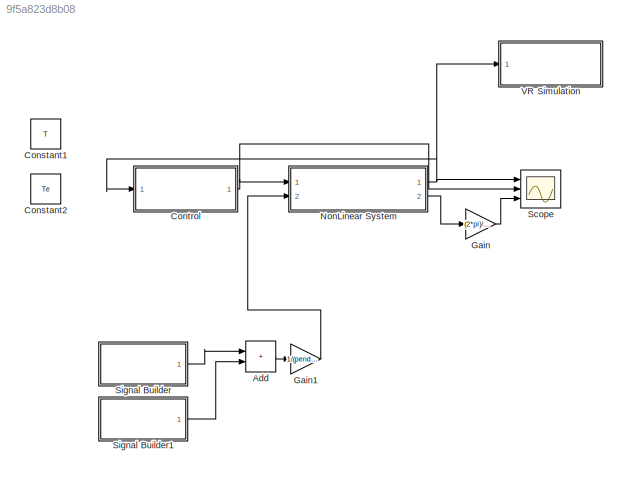
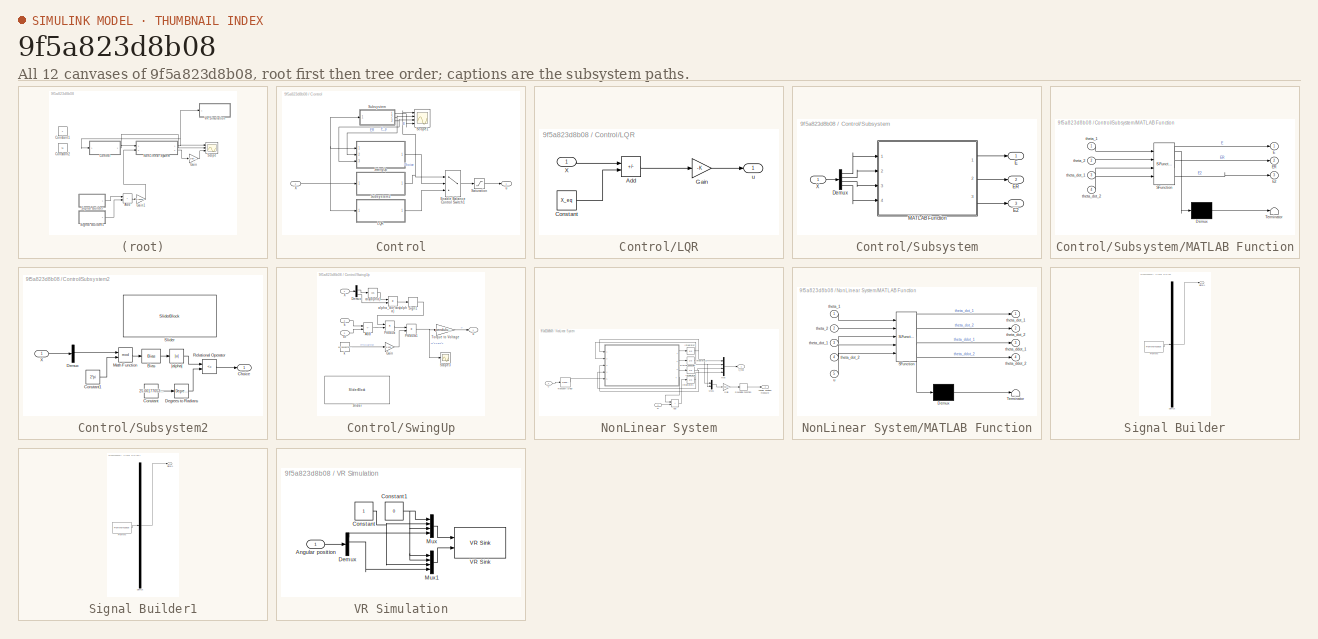
[diagram: thumbnail index - all 12 canvases of the model, root first then tree order]
MODEL slx_9f5a823d8b08
KIND model
CONFIG AbsTol = auto
CONFIG EnableMultiTasking = off
CONFIG FixedStep = auto
CONFIG MaxStep = auto
CONFIG MinStep = auto
CONFIG RelTol = 1e-3
CONFIG SampleTimeConstraint = Unconstrained
CONFIG SolverName = VariableStepAuto
CONFIG StartTime = 0.0
CONFIG StopTime = T
BLOCK [Sum] Add
  IconShape = rectangular
  Ports = [2, 1]
BLOCK [Constant] Constant1
  Value = T
BLOCK [Constant] Constant2
  Value = Te
BLOCK [SubSystem] Control
  Ports = [1, 1]
  RequestExecContextInheritance = off
BLOCK [MultiPortSwitch] Control/Enable Balance Control Switch1
  DataPortOrder = Zero-based contiguous
  InputSameDT = off
  Inputs = 2
  Ports = [3, 1]
  SaturateOnIntegerOverflow = off
  zeroidx = on
BLOCK [SubSystem] Control/LQR
  Ports = [1, 1]
  RequestExecContextInheritance = off
BLOCK [Sum] Control/LQR/Add
  IconShape = rectangular
  Inputs = +-
  Ports = [2, 1]
BLOCK [Constant] Control/LQR/Constant
  Value = X_eq
BLOCK [Gain] Control/LQR/Gain
  Gain = -K
  Multiplication = Matrix(K*u)
BLOCK [Inport] Control/LQR/X
BLOCK [Outport] Control/LQR/u
BLOCK [Saturate] Control/Saturation
  LowerLimit = -10
  UpperLimit = 10
BLOCK [Scope] Control/Scope1
  Floating = off
  NumInputPorts = 4
  Ports = [4]
  ScopeSpecificationString = Simulink.scopes.TimeScopeBlockCfg('CurrentConfiguration', extmgr.ConfigurationSet(extmgr.Configuration('Core','General UI',true,'FigureColor',[1 1 1]),extmgr.Configuration('Core','Source UI',true),extmgr.Configuration('Sources','WiredSimulink',true,'DataLoggingVariableName','ScopeData2','SampleTime','Te'),extmgr.Configuration('Visuals','Time Domain',true,'SerializedDisplays',{struct('MinYLimReal',...<+2478ch>
BLOCK [SubSystem] Control/Subsystem
  Ports = [1, 3]
  RequestExecContextInheritance = off
BLOCK [Demux] Control/Subsystem/Demux
  Ports = [1, 4]
BLOCK [Outport] Control/Subsystem/E
BLOCK [Outport] Control/Subsystem/E2
  Port = 3
BLOCK [Outport] Control/Subsystem/ER
  Port = 2
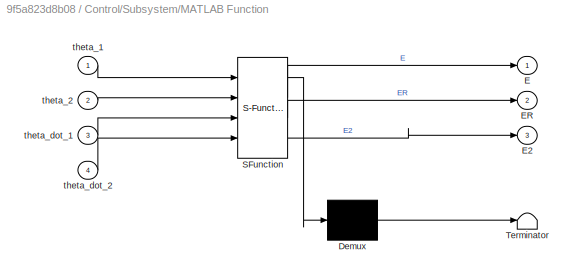
BLOCK [SubSystem] Control/Subsystem/MATLAB Function
  ErrorFcn = Stateflow.Translate.translate
  PermitHierarchicalResolution = ExplicitOnly
  Ports = [4, 3]
  RequestExecContextInheritance = off
  SFBlockType = MATLAB Function
  TreatAsAtomicUnit = on
BLOCK [Demux] Control/Subsystem/MATLAB Function/ Demux 
  Outputs = 1
  Ports = [1, 1]
BLOCK [S-Function] Control/Subsystem/MATLAB Function/ SFunction 
  EnableBusSupport = on
  FunctionName = sf_sfun
  PortCounts = [4 4]
  Ports = [4, 4]
  SFcnIsStateOwnerBlock = off
  SFunctionDeploymentMode = off
  Tag = Stateflow S-Function 1
BLOCK [Terminator] Control/Subsystem/MATLAB Function/ Terminator 
BLOCK [Outport] Control/Subsystem/MATLAB Function/E
BLOCK [Outport] Control/Subsystem/MATLAB Function/E2
  Port = 3
BLOCK [Outport] Control/Subsystem/MATLAB Function/ER
  Port = 2
BLOCK [Inport] Control/Subsystem/MATLAB Function/theta_1
BLOCK [Inport] Control/Subsystem/MATLAB Function/theta_2
  Port = 2
BLOCK [Inport] Control/Subsystem/MATLAB Function/theta_dot_1
  Port = 3
BLOCK [Inport] Control/Subsystem/MATLAB Function/theta_dot_2
  Port = 4
BLOCK [Inport] Control/Subsystem/X
BLOCK [SubSystem] Control/Subsystem2
  Ports = [1, 1]
  RequestExecContextInheritance = off
BLOCK [Bias] Control/Subsystem2/Bias
  Bias = -pi
  SaturateOnIntegerOverflow = off
BLOCK [Outport] Control/Subsystem2/Choice
BLOCK [Constant] Control/Subsystem2/Constant
  Value = 25.00177053824363
BLOCK [Constant] Control/Subsystem2/Constant1
  Value = 2*pi
BLOCK [Reference] Control/Subsystem2/Degrees to Radians  REF=simulink_extras/Transformations/Degrees to
Radians
  Ports = [1, 1]
  SourceBlock = simulink_extras/Transformations/Degrees to\nRadians
  SourceProductBaseCode = SL
  SourceType = DegreesToRadians
BLOCK [Demux] Control/Subsystem2/Demux
  Ports = [1, 4]
BLOCK [Math] Control/Subsystem2/Math Function
  Operator = mod
  Ports = [2, 1]
  SignedPower = on
BLOCK [RelationalOperator] Control/Subsystem2/Relational Operator
  InputSameDT = off
  Operator = <=
  OutDataTypeStr = boolean
  Ports = [2, 1]
  RndMeth = Simplest
BLOCK [SliderBlock] Control/Subsystem2/Slider
  ScaleMax = 180
BLOCK [Inport] Control/Subsystem2/X
BLOCK [Abs] Control/Subsystem2/|alpha|
  SaturateOnIntegerOverflow = off
BLOCK [SubSystem] Control/SwingUp
  Ports = [3, 1]
  RequestExecContextInheritance = off
BLOCK [Sum] Control/SwingUp/Add
  IconShape = rectangular
  Inputs = +-
  Ports = [2, 1]
BLOCK [Demux] Control/SwingUp/Demux
  Ports = [1, 4]
BLOCK [Inport] Control/SwingUp/E
  Port = 3
BLOCK [Inport] Control/SwingUp/Er
  Port = 2
BLOCK [Gain] Control/SwingUp/Gain
  Gain = 1/100
BLOCK [Product] Control/SwingUp/Product
  Ports = [2, 1]
BLOCK [Product] Control/SwingUp/Product1
  Ports = [2, 1]
BLOCK [Scope] Control/SwingUp/Scope3
  Floating = off
  NumInputPorts = 1
  Ports = [1]
  ScopeSpecificationString = Simulink.scopes.TimeScopeBlockCfg('CurrentConfiguration', extmgr.ConfigurationSet(extmgr.Configuration('Core','General UI',true),extmgr.Configuration('Core','Source UI',true),extmgr.Configuration('Sources','WiredSimulink',true,'DataLoggingVariableName','ScopeData1','SampleTime','0.01'),extmgr.Configuration('Visuals','Time Domain',true,'SerializedDisplays',{struct('MinYLimReal','-0.01983','MaxYLimR...<+1461ch>
BLOCK [Signum] Control/SwingUp/Sign1
  ZeroCross = off
BLOCK [SliderBlock] Control/SwingUp/Slider
BLOCK [Gain] Control/SwingUp/Torque to Voltage
  Gain = pendulumParameter.Rm/pendulumParameter.kt
BLOCK [Inport] Control/SwingUp/X
BLOCK [Product] Control/SwingUp/alpha_dot*cos(alpha)
  Ports = [2, 1]
  RndMeth = Zero
BLOCK [Trigonometry] Control/SwingUp/cos(alpha)
  Operator = cos
  Ports = [1, 1]
BLOCK [Constant] Control/SwingUp/k
  Value = 84.99195278969958
BLOCK [Outport] Control/SwingUp/u
  VectorParamsAs1DForOutWhenUnconnected = off
BLOCK [Inport] Control/X
BLOCK [Outport] Control/u
BLOCK [Gain] Gain
  Gain = (2*pi)/2048
BLOCK [Gain] Gain1
  Gain = 1/(pendulumParameter.M2*pendulumParameter.L2)
BLOCK [SubSystem] NonLinear System
  Ports = [2, 2]
  RequestExecContextInheritance = off
BLOCK [Sum] NonLinear System/Add
  IconShape = rectangular
  Ports = [2, 1]
BLOCK [Outport] NonLinear System/Angular position measure
  Port = 2
BLOCK [Gain] NonLinear System/Gain
  Gain = 2048/(2*pi)
BLOCK [Integrator] NonLinear System/Integrator
  Ports = [1, 1]
BLOCK [Integrator] NonLinear System/Integrator1
  Ports = [1, 1]
BLOCK [Integrator] NonLinear System/Integrator2
  InitialCondition = 0.1
  Ports = [1, 1]
BLOCK [Integrator] NonLinear System/Integrator3
  Ports = [1, 1]
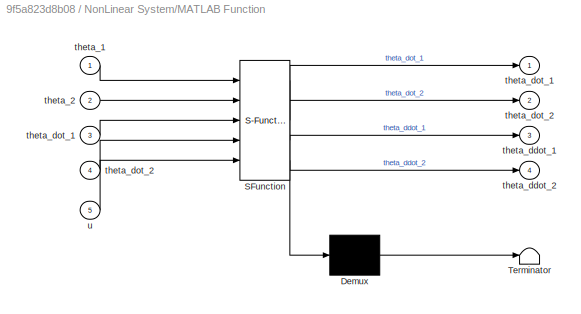
BLOCK [SubSystem] NonLinear System/MATLAB Function
  ErrorFcn = Stateflow.Translate.translate
  PermitHierarchicalResolution = ExplicitOnly
  Ports = [5, 4]
  RequestExecContextInheritance = off
  SFBlockType = MATLAB Function
  TreatAsAtomicUnit = on
BLOCK [Demux] NonLinear System/MATLAB Function/ Demux 
  Outputs = 1
  Ports = [1, 1]
BLOCK [S-Function] NonLinear System/MATLAB Function/ SFunction 
  EnableBusSupport = on
  FunctionName = sf_sfun
  PortCounts = [5 5]
  Ports = [5, 5]
  SFcnIsStateOwnerBlock = off
  SFunctionDeploymentMode = off
  Tag = Stateflow S-Function 3
BLOCK [Terminator] NonLinear System/MATLAB Function/ Terminator 
BLOCK [Inport] NonLinear System/MATLAB Function/theta_1
BLOCK [Inport] NonLinear System/MATLAB Function/theta_2
  Port = 2
BLOCK [Outport] NonLinear System/MATLAB Function/theta_ddot_1
  Port = 3
BLOCK [Outport] NonLinear System/MATLAB Function/theta_ddot_2
  Port = 4
BLOCK [Outport] NonLinear System/MATLAB Function/theta_dot_1
BLOCK [Inport] NonLinear System/MATLAB Function/theta_dot_1 
  Port = 3
BLOCK [Outport] NonLinear System/MATLAB Function/theta_dot_2
  Port = 2
BLOCK [Inport] NonLinear System/MATLAB Function/theta_dot_2 
  Port = 4
BLOCK [Inport] NonLinear System/MATLAB Function/u
  Port = 5
BLOCK [Mux] NonLinear System/Mux
  DisplayOption = bar
  Ports = [4, 1]
BLOCK [Mux] NonLinear System/Mux1
  DisplayOption = bar
  Inputs = 2
  Ports = [2, 1]
BLOCK [Rounding] NonLinear System/Rounding Function
BLOCK [TransportDelay] NonLinear System/Transport Delay
  DelayTime = 0.02
  Ports = [1, 1]
BLOCK [Outport] NonLinear System/X_real
BLOCK [Inport] NonLinear System/u
BLOCK [Inport] NonLinear System/w
  Port = 2
BLOCK [Scope] Scope
  Floating = off
  NumInputPorts = 3
  Ports = [3]
  ScopeSpecificationString = Simulink.scopes.TimeScopeBlockCfg('CurrentConfiguration', extmgr.ConfigurationSet(extmgr.Configuration('Core','General UI',true,'FigureColor',[1 1 1]),extmgr.Configuration('Core','Source UI',true),extmgr.Configuration('Sources','WiredSimulink',true,'SampleTime','Te','DataLoggingVariableName','ScopeData4'),extmgr.Configuration('Visuals','Time Domain',true,'SerializedDisplays',{struct('MinYLimReal',...<+2299ch>
BLOCK [SubSystem] Signal Builder
  ClipboardFcn = sigbuilder_block('clipboard');
  CloseFcn = sigbuilder_block('close');
  ContinueFcn = sigbuilder_block('continue');
  CopyFcn = sigbuilder_block('copy');
  DeleteFcn = sigbuilder_block('delete');
  LoadFcn = sigbuilder_block('load');
  MaskHideContents = on
  ModelCloseFcn = sigbuilder_block('modelClose');
  NameChangeFcn = sigbuilder_block('namechange');
  OpenFcn = sigbuilder_block('open',[886.5 189.75 550.5 358.5 ]);
  PauseFcn = sigbuilder_block('pause');
  Ports = [0, 1]
  PreSaveFcn = sigbuilder_block('preSave');
  RequestExecContextInheritance = off
  StartFcn = sigbuilder_block('start');
  StopFcn = sigbuilder_block('stop');
  Tag = STV Subsys
BLOCK [Demux] Signal Builder/Demux
  DisplayOption = none
  Outputs = 1
  Ports = [1, 1]
  Tag = STV Demux
BLOCK [FromWorkspace] Signal Builder/FromWs
  Tag = STV FromWs
  VariableName = tuvar
BLOCK [Outport] Signal Builder/Signal 1
  Tag = STV Outport
BLOCK [SubSystem] Signal Builder1
  ClipboardFcn = sigbuilder_block('clipboard');
  CloseFcn = sigbuilder_block('close');
  ContinueFcn = sigbuilder_block('continue');
  CopyFcn = sigbuilder_block('copy');
  DeleteFcn = sigbuilder_block('delete');
  LoadFcn = sigbuilder_block('load');
  MaskHideContents = on
  ModelCloseFcn = sigbuilder_block('modelClose');
  NameChangeFcn = sigbuilder_block('namechange');
  OpenFcn = sigbuilder_block('open',[846.75 188.25 544.5 355.5 ]);
  PauseFcn = sigbuilder_block('pause');
  Ports = [0, 1]
  PreSaveFcn = sigbuilder_block('preSave');
  RequestExecContextInheritance = off
  StartFcn = sigbuilder_block('start');
  StopFcn = sigbuilder_block('stop');
  Tag = STV Subsys
BLOCK [Demux] Signal Builder1/Demux
  DisplayOption = none
  Outputs = 1
  Ports = [1, 1]
  Tag = STV Demux
BLOCK [FromWorkspace] Signal Builder1/FromWs
  Tag = STV FromWs
  VariableName = tuvar
BLOCK [Outport] Signal Builder1/Signal 1
  Tag = STV Outport
BLOCK [SubSystem] VR Simulation
  Ports = [1]
  RequestExecContextInheritance = off
BLOCK [Inport] VR Simulation/Angular position
BLOCK [Constant] VR Simulation/Constant
BLOCK [Constant] VR Simulation/Constant1
  Value = 0
BLOCK [Demux] VR Simulation/Demux
  Ports = [1, 4]
BLOCK [Mux] VR Simulation/Mux
  DisplayOption = bar
  Ports = [4, 1]
BLOCK [Mux] VR Simulation/Mux1
  DisplayOption = bar
  Ports = [4, 1]
BLOCK [Reference] VR Simulation/VR Sink  REF=vrlib/VR Sink
  InstantiateOnLoad = on
  Ports = [2]
  SourceBlock = vrlib/VR Sink
  SourceProductBaseCode = SL
  SourceType = Virtual Reality Sink
LINE Add:1 -> Gain1:1
LINE Control/Enable Balance Control Switch1:1 -> Control/Saturation:1
LINE Control/LQR/Add:1 -> Control/LQR/Gain:1
LINE Control/LQR/Constant:1 -> Control/LQR/Add:2
LINE Control/LQR/Gain:1 -> Control/LQR/u:1
LINE Control/LQR/X:1 -> Control/LQR/Add:1
LINE Control/LQR:1 -> Control/Enable Balance Control Switch1:3
LINE Control/Saturation:1 -> Control/u:1
LINE Control/Subsystem/Demux:1 -> Control/Subsystem/MATLAB Function:1
LINE Control/Subsystem/Demux:2 -> Control/Subsystem/MATLAB Function:2
LINE Control/Subsystem/Demux:3 -> Control/Subsystem/MATLAB Function:3
LINE Control/Subsystem/Demux:4 -> Control/Subsystem/MATLAB Function:4
LINE Control/Subsystem/MATLAB Function:1 -> Control/Subsystem/E:1
LINE Control/Subsystem/MATLAB Function:2 -> Control/Subsystem/ER:1
LINE Control/Subsystem/MATLAB Function:3 -> Control/Subsystem/E2:1
LINE Control/Subsystem/X:1 -> Control/Subsystem/Demux:1
LINE Control/Subsystem2/Bias:1 -> Control/Subsystem2/|alpha|:1
LINE Control/Subsystem2/Constant1:1 -> Control/Subsystem2/Math Function:2
LINE Control/Subsystem2/Constant:1 -> Control/Subsystem2/Degrees to Radians:1
LINE Control/Subsystem2/Degrees to Radians:1 -> Control/Subsystem2/Relational Operator:2
LINE Control/Subsystem2/Demux:2 -> Control/Subsystem2/Math Function:1
LINE Control/Subsystem2/Math Function:1 -> Control/Subsystem2/Bias:1
LINE Control/Subsystem2/Relational Operator:1 -> Control/Subsystem2/Choice:1
LINE Control/Subsystem2/X:1 -> Control/Subsystem2/Demux:1
LINE Control/Subsystem2/|alpha|:1 -> Control/Subsystem2/Relational Operator:1
NET Control/Subsystem2:1 -> Control/Enable Balance Control Switch1:1, Control/Scope1:1
LINE Control/Subsystem:1 -> Control/Scope1:4
NET Control/Subsystem:2 -> Control/Scope1:2, Control/SwingUp:2
NET Control/Subsystem:3 -> Control/Scope1:3, Control/SwingUp:3
LINE Control/SwingUp/Add:1 -> Control/SwingUp/Product:2
LINE Control/SwingUp/Demux:2 -> Control/SwingUp/cos(alpha):1
LINE Control/SwingUp/Demux:4 -> Control/SwingUp/alpha_dot*cos(alpha):2
LINE Control/SwingUp/E:1 -> Control/SwingUp/Add:1
LINE Control/SwingUp/Er:1 -> Control/SwingUp/Add:2
LINE Control/SwingUp/Gain:1 -> Control/SwingUp/Product1:2
NET Control/SwingUp/Product1:1 -> Control/SwingUp/Scope3:1, Control/SwingUp/Torque to Voltage:1
LINE Control/SwingUp/Product:1 -> Control/SwingUp/Product1:1
LINE Control/SwingUp/Sign1:1 -> Control/SwingUp/Product:1
LINE Control/SwingUp/Torque to Voltage:1 -> Control/SwingUp/u:1
LINE Control/SwingUp/X:1 -> Control/SwingUp/Demux:1
LINE Control/SwingUp/alpha_dot*cos(alpha):1 -> Control/SwingUp/Sign1:1
LINE Control/SwingUp/cos(alpha):1 -> Control/SwingUp/alpha_dot*cos(alpha):1
LINE Control/SwingUp/k:1 -> Control/SwingUp/Gain:1
LINE Control/SwingUp:1 -> Control/Enable Balance Control Switch1:2
NET Control/X:1 -> Control/LQR:1, Control/Subsystem2:1, Control/Subsystem:1, Control/SwingUp:1
NET Control:1 -> NonLinear System:1, Scope:2
LINE Gain1:1 -> NonLinear System:2
LINE Gain:1 -> Scope:3
LINE NonLinear System/Add:1 -> NonLinear System/Integrator1:1
LINE NonLinear System/Gain:1 -> NonLinear System/Rounding Function:1
NET NonLinear System/Integrator1:1 -> NonLinear System/MATLAB Function:4, NonLinear System/Mux:4
NET NonLinear System/Integrator2:1 -> NonLinear System/MATLAB Function:2, NonLinear System/Mux1:2, NonLinear System/Mux:2
NET NonLinear System/Integrator3:1 -> NonLinear System/MATLAB Function:1, NonLinear System/Mux1:1, NonLinear System/Mux:1
NET NonLinear System/Integrator:1 -> NonLinear System/MATLAB Function:3, NonLinear System/Mux:3
LINE NonLinear System/MATLAB Function:1 -> NonLinear System/Integrator3:1
LINE NonLinear System/MATLAB Function:2 -> NonLinear System/Integrator2:1
LINE NonLinear System/MATLAB Function:3 -> NonLinear System/Integrator:1
LINE NonLinear System/MATLAB Function:4 -> NonLinear System/Add:1
LINE NonLinear System/Mux1:1 -> NonLinear System/Gain:1
LINE NonLinear System/Mux:1 -> NonLinear System/X_real:1
LINE NonLinear System/Rounding Function:1 -> NonLinear System/Angular position measure:1
LINE NonLinear System/Transport Delay:1 -> NonLinear System/MATLAB Function:5
LINE NonLinear System/u:1 -> NonLinear System/Transport Delay:1
LINE NonLinear System/w:1 -> NonLinear System/Add:2
NET NonLinear System:1 -> Control:1, Scope:1, VR Simulation:1
LINE NonLinear System:2 -> Gain:1
LINE Signal Builder1:1 -> Add:2
LINE Signal Builder:1 -> Add:1
LINE VR Simulation/Angular position:1 -> VR Simulation/Demux:1
NET VR Simulation/Constant1:1 -> VR Simulation/Mux1:1, VR Simulation/Mux1:2, VR Simulation/Mux:1, VR Simulation/Mux:3
NET VR Simulation/Constant:1 -> VR Simulation/Mux1:3, VR Simulation/Mux:2
LINE VR Simulation/Demux:1 -> VR Simulation/Mux:4
LINE VR Simulation/Demux:2 -> VR Simulation/Mux1:4
LINE VR Simulation/Mux1:1 -> VR Simulation/VR Sink:2
LINE VR Simulation/Mux:1 -> VR Simulation/VR Sink:1
note: NET lines group one-source signal fan-out (src -> all destinations, sorted); 1:1 wires keep LINE
CHART Control/Subsystem/MATLAB Function states=1 transitions=1
  STATE_LABEL 'eML_blk_kernel()'
  STATE_LABEL "SCRIPT:\nfunction [E, ER, E2]  = energie(theta_1, theta_2, theta_dot_1, theta_dot_2)\n    coder.extrinsic('evalin');\n    pp = PendulumParameter();\n    pp = evalin('base','pendulumParameter'); \n    E_p1 = 0;\n    E_p2 = pp.g*pp.M2*pp.L2*(1-cos(theta_2))/2;\n    E_k1 = 1/2*pp.J1*theta_dot_1^2;\n    E_k2 = 1/2*theta_dot_1^2*(pp.M2*pp.L2^2+pp.J2*sin(theta_2)^2)+1/2*theta_dot_2^2*pp.J2 +pp.M2*pp.L1*pp.L2/2*...<+133ch>"
CHART NonLinear System/MATLAB Function states=1 transitions=1
  STATE_LABEL 'eML_blk_kernel()'
  STATE_LABEL "SCRIPT:\nfunction [theta_dot_1,theta_dot_2,theta_ddot_1,theta_ddot_2]=PendulumNonLinearModel_internal(theta_1,theta_2,theta_dot_1,theta_dot_2,u)\n    coder.extrinsic('evalin');\n    pp = PendulumParameter();\n    pp = evalin('base','pendulumParameter');\n    [theta_dot_1,theta_dot_2,theta_ddot_1,theta_ddot_2]=PendulumNonLinearModel(pp, theta_1,theta_2,theta_dot_1,theta_dot_2,u);\nend"
CHART  states=0 transitions=0
CHART  states=0 transitions=0
